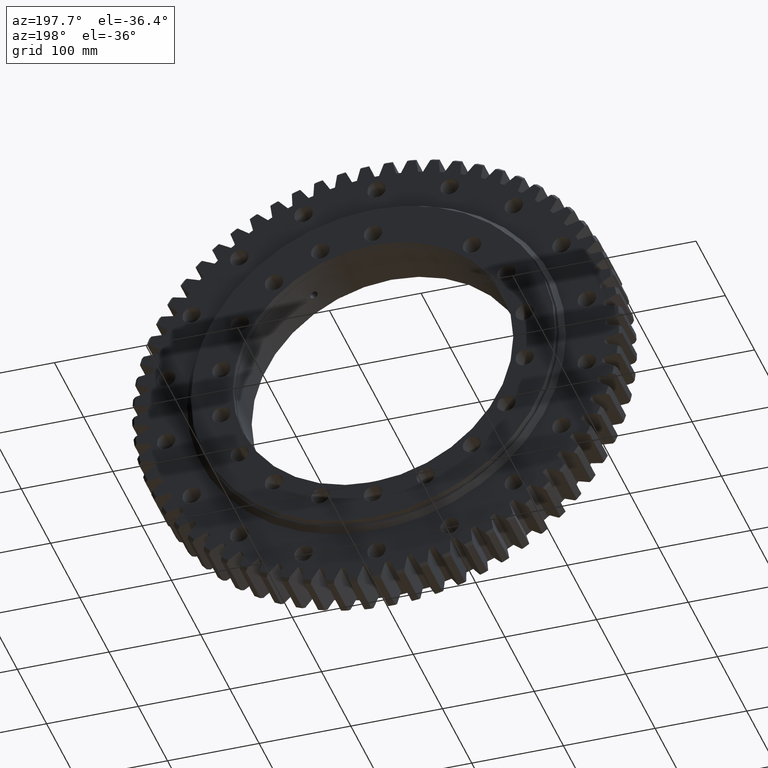
[diagram: clean part render]
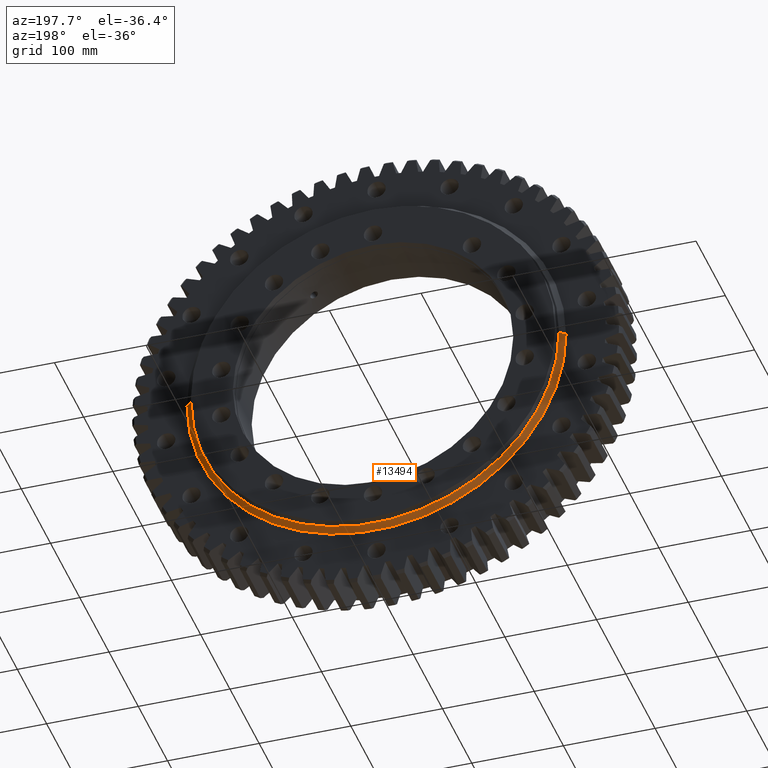
[diagram: same view with one face highlighted and labeled with its STEP entity id]
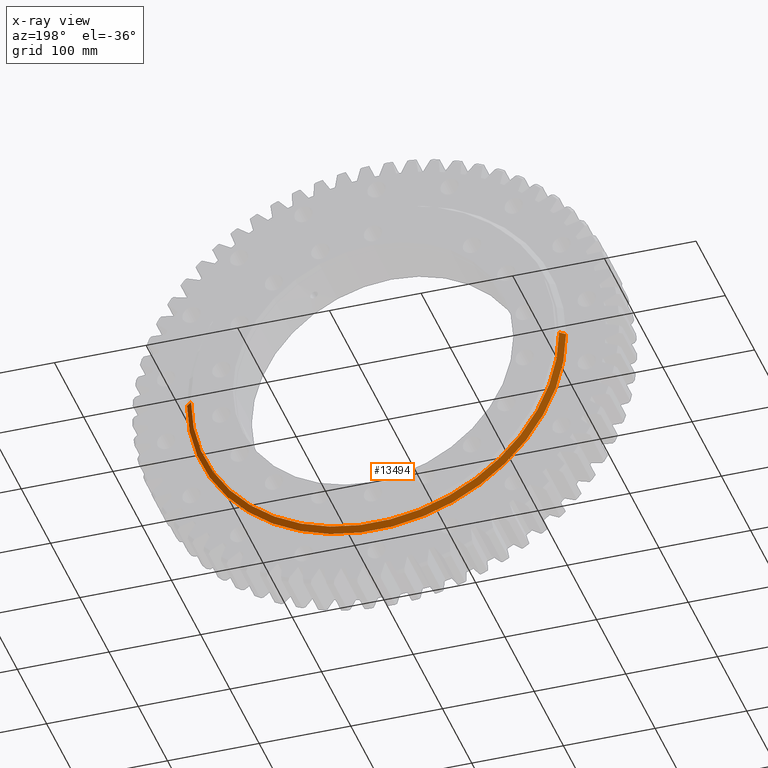
[diagram: x-ray of the same camera — body ghosted, the highlighted face saturated]
A machine part, auxiliary view. The second image highlights one B-rep face of the part: STEP entity #13494.
The next image is the same camera in x-ray: the body ghosted, the highlighted face saturated — about 0% of this face is hidden behind the body in this view.
In plain terms, the highlighted conical surface has half-angle 49.914 deg.
Its self-contained STEP definition (entity closure, byte-faithful):
#786 = EDGE_CURVE ( 'NONE', #11335, #1770, #11445, .T. ) ;
#1181 = ORIENTED_EDGE ( 'NONE', *, *, #2977, .F. ) ;
#1770 = VERTEX_POINT ( 'NONE', #5463 ) ;
#2352 = VECTOR ( 'NONE', #7310, 1000.000000000000000 ) ;
#2894 = CARTESIAN_POINT ( 'NONE',  ( -200.7500000000000000, 30.55000000000004000, 2.495217853262732400E-014 ) ) ;
#2977 = EDGE_CURVE ( 'NONE', #6933, #10198, #16296, .T. ) ;
#3070 = CARTESIAN_POINT ( 'NONE',  ( -1.111441190582386600E-015, 25.49999999999996400, 0.0000000000000000000 ) ) ;
#3928 = DIRECTION ( 'NONE',  ( 1.836909530733565900E-016, 1.000000000000000000, -0.0000000000000000000 ) ) ;
#4030 = AXIS2_PLACEMENT_3D ( 'NONE', #3070, #14775, #15153 ) ;
#4070 = ORIENTED_EDGE ( 'NONE', *, *, #7234, .T. ) ;
#4505 = DIRECTION ( 'NONE',  ( 1.836909530733565900E-016, 1.000000000000000000, -0.0000000000000000000 ) ) ;
#4776 = CARTESIAN_POINT ( 'NONE',  ( 206.7500000000000300, 25.49999999999992500, 0.0000000000000000000 ) ) ;
#5463 = CARTESIAN_POINT ( 'NONE',  ( -206.7500000000000300, 25.50000000000000400, 2.531957257237153000E-014 ) ) ;
#6085 = DIRECTION ( 'NONE',  ( 0.7650765054985548800, -0.6439393921279547000, 0.0000000000000000000 ) ) ;
#6262 = LINE ( 'NONE', #10253, #2352 ) ;
#6933 = VERTEX_POINT ( 'NONE', #16139 ) ;
#7234 = EDGE_CURVE ( 'NONE', #6933, #11335, #10770, .T. ) ;
#7310 = DIRECTION ( 'NONE',  ( -0.7650765054985549900, -0.6439393921279544800, 9.369484935616476500E-017 ) ) ;
#7490 = EDGE_LOOP ( 'NONE', ( #11773, #1181, #4070, #16978 ) ) ;
#9194 = CONICAL_SURFACE ( 'NONE', #4030, 206.7500000000000300, 0.8711601305813067000 ) ;
#10198 = VERTEX_POINT ( 'NONE', #2894 ) ;
#10253 = CARTESIAN_POINT ( 'NONE',  ( -206.7500000000000300, 25.50000000000000400, 2.531957257237153000E-014 ) ) ;
#10770 = LINE ( 'NONE', #14080, #18060 ) ;
#11335 = VERTEX_POINT ( 'NONE', #4776 ) ;
#11445 = CIRCLE ( 'NONE', #13498, 206.7500000000000300 ) ;
#11766 = EDGE_CURVE ( 'NONE', #10198, #1770, #6262, .T. ) ;
#11773 = ORIENTED_EDGE ( 'NONE', *, *, #11766, .F. ) ;
#12706 = DIRECTION ( 'NONE',  ( -1.000000000000000000, 1.901066822988281700E-016, 0.0000000000000000000 ) ) ;
#13292 = CARTESIAN_POINT ( 'NONE',  ( -1.111441190582386600E-015, 25.49999999999996400, 0.0000000000000000000 ) ) ;
#13494 = ADVANCED_FACE ( 'NONE', ( #17872 ), #9194, .T. ) ;
#13498 = AXIS2_PLACEMENT_3D ( 'NONE', #13292, #4505, #14729 ) ;
#14080 = CARTESIAN_POINT ( 'NONE',  ( 206.7500000000000300, 25.49999999999992500, 0.0000000000000000000 ) ) ;
#14174 = CARTESIAN_POINT ( 'NONE',  ( -1.838018775619287200E-016, 30.55000000000000100, 0.0000000000000000000 ) ) ;
#14729 = DIRECTION ( 'NONE',  ( -1.000000000000000000, 1.845896806359842900E-016, 0.0000000000000000000 ) ) ;
#14775 = DIRECTION ( 'NONE',  ( -1.836909530733565900E-016, -1.000000000000000000, 0.0000000000000000000 ) ) ;
#15153 = DIRECTION ( 'NONE',  ( 1.000000000000000000, -1.845896806359842900E-016, 0.0000000000000000000 ) ) ;
#16139 = CARTESIAN_POINT ( 'NONE',  ( 200.7500000000000000, 30.54999999999996200, 0.0000000000000000000 ) ) ;
#16296 = CIRCLE ( 'NONE', #16563, 200.7500000000000000 ) ;
#16563 = AXIS2_PLACEMENT_3D ( 'NONE', #14174, #3928, #12706 ) ;
#16978 = ORIENTED_EDGE ( 'NONE', *, *, #786, .T. ) ;
#17872 = FACE_OUTER_BOUND ( 'NONE', #7490, .T. ) ;
#18060 = VECTOR ( 'NONE', #6085, 999.9999999999998900 ) ;